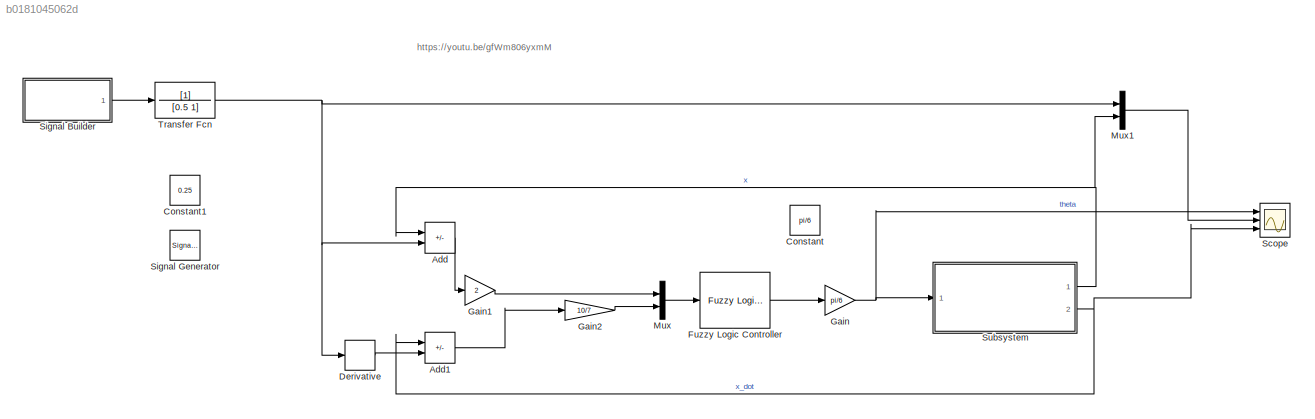
MODEL slx_b0181045062d
KIND model
CONFIG AbsTol = auto
CONFIG FixedStep = 0.01
CONFIG MaxStep = auto
CONFIG MinStep = auto
CONFIG RelTol = 1e-3
CONFIG SampleTimeConstraint = Unconstrained
CONFIG Solver = ode4
CONFIG SolverMode = SingleTasking
CONFIG SolverName = ode4
CONFIG StartTime = 0.0
CONFIG StopTime = 50
BLOCK [Sum] Add
  IconShape = rectangular
  Inputs = +-
  Ports = [2, 1]
BLOCK [Sum] Add1
  IconShape = rectangular
  Inputs = +-
  Ports = [2, 1]
BLOCK [Constant] Constant
  Value = pi/6
BLOCK [Constant] Constant1
  Value = 0.25
BLOCK [Derivative] Derivative
BLOCK [Reference] Fuzzy Logic Controller  REF=fuzblock/Fuzzy Logic   (lib defined in mdl_858b3b3e7478)
Controller
  Ports = [1, 1]
  SourceBlock = fuzblock/Fuzzy Logic \nController
  SourceType = Fuzzy Inference System
BLOCK [Gain] Gain
  Gain = pi/6
BLOCK [Gain] Gain1
  Gain = 2
BLOCK [Gain] Gain2
  Gain = 10/7
BLOCK [Mux] Mux
  DisplayOption = bar
  Inputs = 2
  Ports = [2, 1]
BLOCK [Mux] Mux1
  DisplayOption = bar
  Inputs = 2
  Ports = [2, 1]
BLOCK [Scope] Scope
  Floating = off
  NumInputPorts = 3
  Ports = [3]
  ScopeSpecificationString = Simulink.scopes.TimeScopeBlockCfg('CurrentConfiguration', extmgr.ConfigurationSet(extmgr.Configuration('Core','General UI',true,'FigureColor',[1 1 1]),extmgr.Configuration('Core','Source UI',true),extmgr.Configuration('Sources','WiredSimulink',true),extmgr.Configuration('Visuals','Time Domain',true,'SerializedDisplays',{struct('MinYLimReal','-0.35502','MaxYLimReal','0.50487','YLabelReal','','MinYL...<+3073ch>
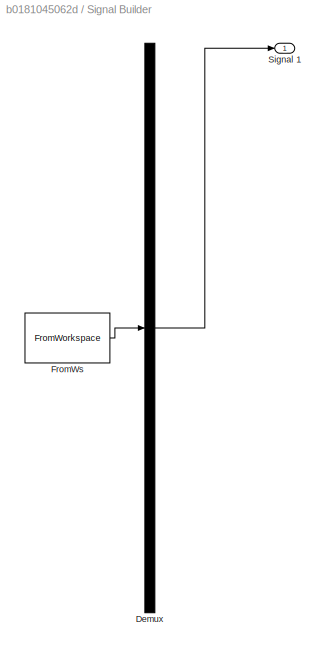
BLOCK [SubSystem] Signal Builder
  ClipboardFcn = sigbuilder_block('clipboard');
  CloseFcn = sigbuilder_block('close');
  ContinueFcn = sigbuilder_block('continue');
  CopyFcn = sigbuilder_block('copy');
  DeleteFcn = sigbuilder_block('delete');
  LoadFcn = sigbuilder_block('load');
  MaskHideContents = on
  ModelCloseFcn = sigbuilder_block('modelClose');
  NameChangeFcn = sigbuilder_block('namechange');
  OpenFcn = sigbuilder_block('open',[375.6 91.2 550.8 400.2 ]);
  PauseFcn = sigbuilder_block('pause');
  Ports = [0, 1]
  PreSaveFcn = sigbuilder_block('preSave');
  RequestExecContextInheritance = off
  StartFcn = sigbuilder_block('start');
  StopFcn = sigbuilder_block('stop');
  Tag = STV Subsys
BLOCK [Demux] Signal Builder/Demux
  DisplayOption = none
  Outputs = 1
  Ports = [1, 1]
  Tag = STV Demux
BLOCK [FromWorkspace] Signal Builder/FromWs
  Tag = STV FromWs
  VariableName = tuvar
BLOCK [Outport] Signal Builder/Signal 1
  Tag = STV Outport
BLOCK [SignalGenerator] Signal Generator
  Amplitude = 0.25
  Frequency = 0.2
  Ports = [0, 1]
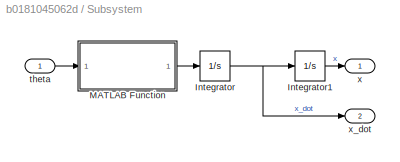
BLOCK [SubSystem] Subsystem
  Ports = [1, 2]
  RequestExecContextInheritance = off
BLOCK [Integrator] Subsystem/Integrator
  Ports = [1, 1]
BLOCK [Integrator] Subsystem/Integrator1
  InitialCondition = x0
  Ports = [1, 1]
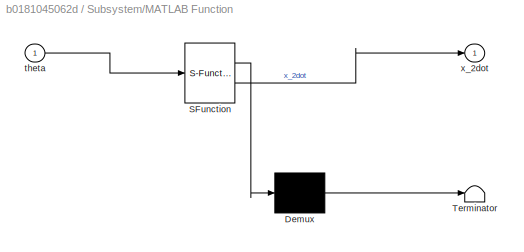
BLOCK [SubSystem] Subsystem/MATLAB Function
  ErrorFcn = Stateflow.Translate.translate
  PermitHierarchicalResolution = ExplicitOnly
  Ports = [1, 1]
  RequestExecContextInheritance = off
  SFBlockType = MATLAB Function
  TreatAsAtomicUnit = on
BLOCK [Demux] Subsystem/MATLAB Function/ Demux 
  Outputs = 1
  Ports = [1, 1]
BLOCK [S-Function] Subsystem/MATLAB Function/ SFunction 
  EnableBusSupport = on
  FunctionName = sf_sfun
  PortCounts = [1 2]
  Ports = [1, 2]
  SFunctionDeploymentMode = off
  Tag = Stateflow S-Function fuzzy_BallandBeam_x_d_2016a 2
BLOCK [Terminator] Subsystem/MATLAB Function/ Terminator 
BLOCK [Inport] Subsystem/MATLAB Function/theta
BLOCK [Outport] Subsystem/MATLAB Function/x_2dot
BLOCK [Inport] Subsystem/theta
BLOCK [Outport] Subsystem/x
BLOCK [Outport] Subsystem/x_dot
  Port = 2
BLOCK [TransferFcn] Transfer Fcn
  Denominator = [0.5 1]
ANNOTATION (root): https://youtu.be/gfWm806yxmM
LINE Add1:1 -> Gain2:1
LINE Add:1 -> Gain1:1
LINE Derivative:1 -> Add1:2
LINE Fuzzy Logic Controller:1 -> Gain:1
LINE Gain1:1 -> Mux:1
LINE Gain2:1 -> Mux:2
NET Gain:1 -> Scope:1, Subsystem:1
LINE Mux1:1 -> Scope:2
LINE Mux:1 -> Fuzzy Logic Controller:1
LINE Signal Builder:1 -> Transfer Fcn:1
LINE Subsystem/Integrator1:1 -> Subsystem/x:1
NET Subsystem/Integrator:1 -> Subsystem/Integrator1:1, Subsystem/x_dot:1
LINE Subsystem/MATLAB Function:1 -> Subsystem/Integrator:1
LINE Subsystem/theta:1 -> Subsystem/MATLAB Function:1
NET Subsystem:1 -> Add:1, Mux1:2
NET Subsystem:2 -> Add1:1, Scope:3
NET Transfer Fcn:1 -> Add:2, Derivative:1, Mux1:1
note: NET lines group one-source signal fan-out (src -> all destinations, sorted); 1:1 wires keep LINE
CHART Subsystem/MATLAB Function states=1 transitions=1
  STATE_LABEL 'eML_blk_kernel()'
  STATE_LABEL 'SCRIPT:\nfunction x_2dot = fcn(theta)\n%% model parameters\nm = 1.7;\nR = 5e-3;\nJ = 3.3e-5;\ng = 9.81;\n%%\nx_2dot = m*g*sin(theta) /(J/R^2+m);\n'
